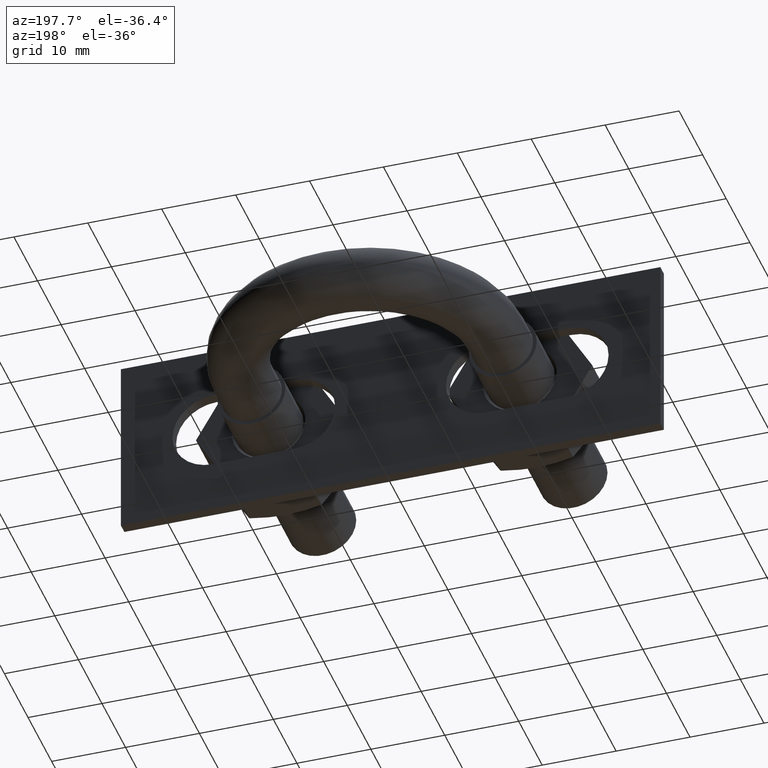
[diagram: clean part render]
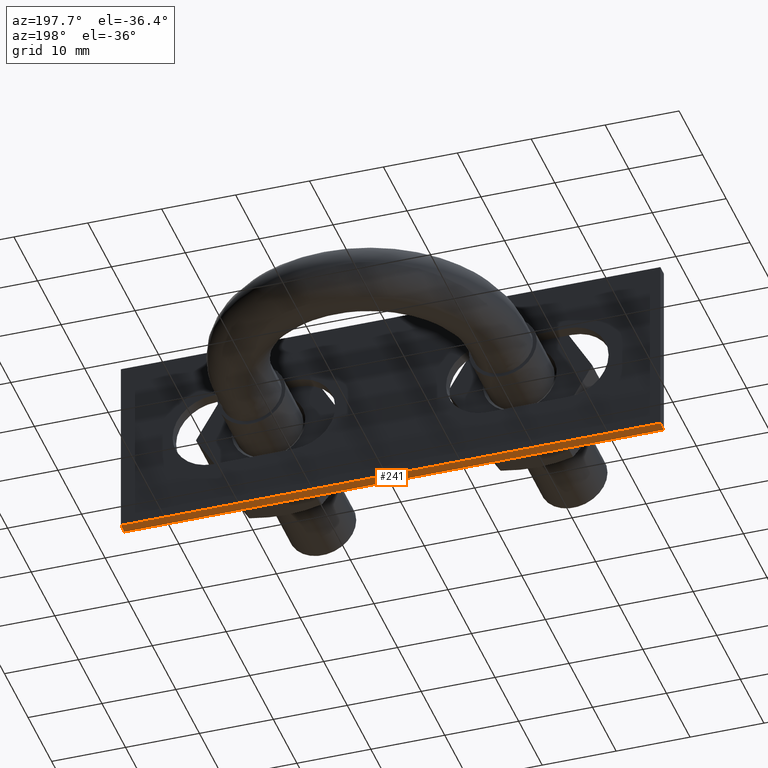
[diagram: same view with one face highlighted and labeled with its STEP entity id]
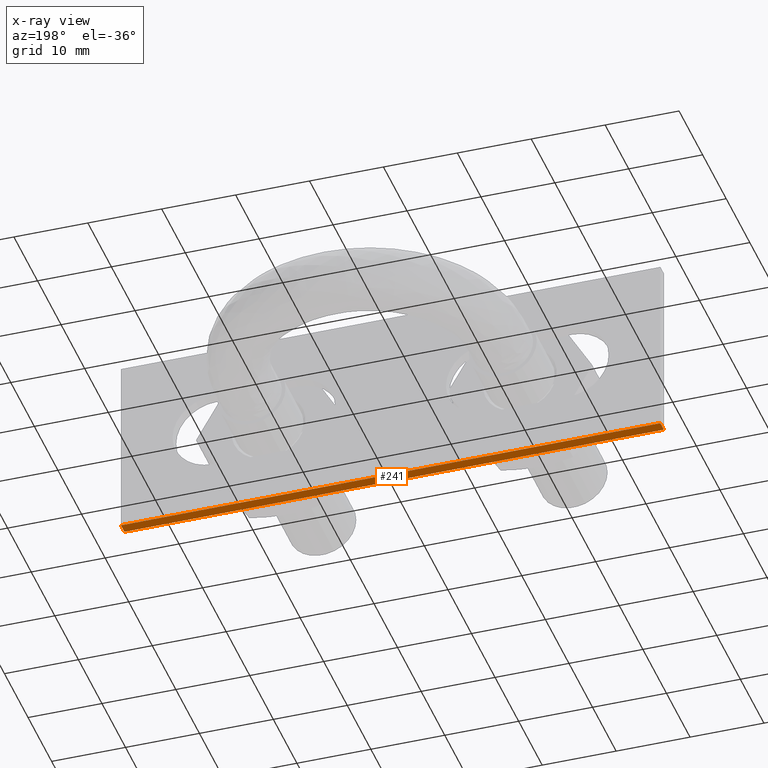
[diagram: x-ray of the same camera — body ghosted, the highlighted face saturated]
A machine part, auxiliary view. The second image highlights one B-rep face of the part: STEP entity #241.
The next image is the same camera in x-ray: the body ghosted, the highlighted face saturated — about 0% of this face is hidden behind the body in this view.
In plain terms, the highlighted planar face has unit normal (0, 0, 1).
Its self-contained STEP definition (entity closure, byte-faithful):
#241 = ADVANCED_FACE( '', ( #344 ), #345, .F. );
#344 = FACE_OUTER_BOUND( '', #664, .T. );
#345 = PLANE( '', #665 );
#664 = EDGE_LOOP( '', ( #931, #932, #933, #934 ) );
#665 = AXIS2_PLACEMENT_3D( '', #935, #936, #937 );
#931 = ORIENTED_EDGE( '', *, *, #1343, .T. );
#932 = ORIENTED_EDGE( '', *, *, #1350, .F. );
#933 = ORIENTED_EDGE( '', *, *, #1311, .F. );
#934 = ORIENTED_EDGE( '', *, *, #1321, .T. );
#935 = CARTESIAN_POINT( '', ( -36.5000000000000, -7.20000000000000, -12.5000000000000 ) );
#936 = DIRECTION( '', ( 0.000000000000000, 6.12303176911189E-017, 1.00000000000000 ) );
#937 = DIRECTION( '', ( -1.00000000000000, 0.000000000000000, 0.000000000000000 ) );
#1311 = EDGE_CURVE( '', #1481, #1483, #1484, .T. );
#1321 = EDGE_CURVE( '', #1481, #1501, #1503, .T. );
#1343 = EDGE_CURVE( '', #1501, #1537, #1539, .T. );
#1350 = EDGE_CURVE( '', #1483, #1537, #1546, .T. );
#1481 = VERTEX_POINT( '', #1765 );
#1483 = VERTEX_POINT( '', #1768 );
#1484 = LINE( '', #1769, #1770 );
#1501 = VERTEX_POINT( '', #1791 );
#1503 = LINE( '', #1794, #1795 );
#1537 = VERTEX_POINT( '', #1841 );
#1539 = LINE( '', #1844, #1845 );
#1546 = LINE( '', #1858, #1859 );
#1765 = CARTESIAN_POINT( '', ( -36.5000000000000, -7.20000000000000, -12.5000000000000 ) );
#1768 = CARTESIAN_POINT( '', ( 36.5000000000000, -7.20000000000000, -12.5000000000000 ) );
#1769 = CARTESIAN_POINT( '', ( -36.5000000000000, -7.20000000000000, -12.5000000000000 ) );
#1770 = VECTOR( '', #2233, 1000.00000000000 );
#1791 = CARTESIAN_POINT( '', ( -36.5000000000000, -5.70000000000000, -12.5000000000000 ) );
#1794 = CARTESIAN_POINT( '', ( -36.5000000000000, -7.20000000000000, -12.5000000000000 ) );
#1795 = VECTOR( '', #2251, 1000.00000000000 );
#1841 = CARTESIAN_POINT( '', ( 36.5000000000000, -5.70000000000000, -12.5000000000000 ) );
#1844 = CARTESIAN_POINT( '', ( -36.5000000000000, -5.70000000000000, -12.5000000000000 ) );
#1845 = VECTOR( '', #2289, 1000.00000000000 );
#1858 = CARTESIAN_POINT( '', ( 36.5000000000000, -7.20000000000000, -12.5000000000000 ) );
#1859 = VECTOR( '', #2296, 1000.00000000000 );
#2233 = DIRECTION( '', ( 1.00000000000000, 0.000000000000000, 0.000000000000000 ) );
#2251 = DIRECTION( '', ( 0.000000000000000, 1.00000000000000, -6.12303176911189E-017 ) );
#2289 = DIRECTION( '', ( 1.00000000000000, 0.000000000000000, 0.000000000000000 ) );
#2296 = DIRECTION( '', ( 0.000000000000000, 1.00000000000000, -6.12303176911189E-017 ) );